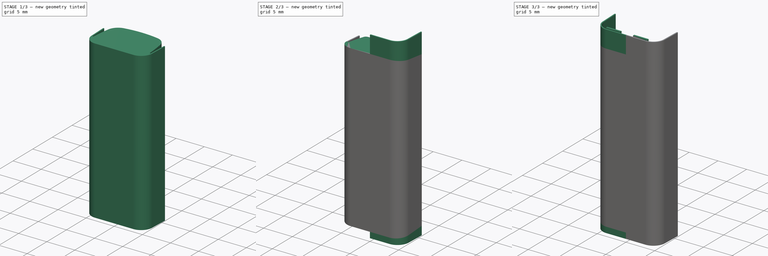
[diagram: build sequence overview — one tinted view per stage of 3, left to right]
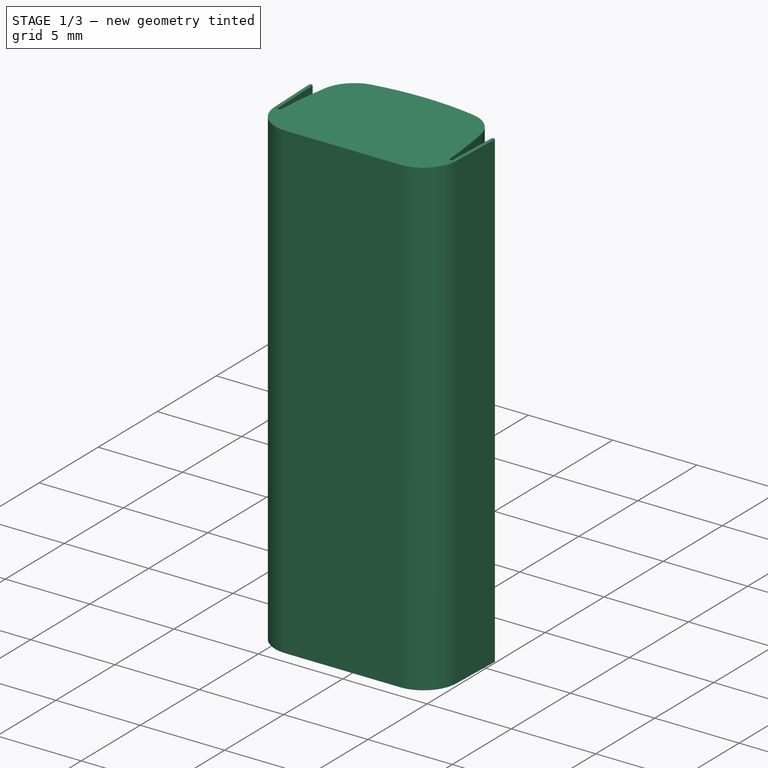
[diagram: stage 1 of 3 — iso view after this stage's code; geometry added in this stage tinted green]
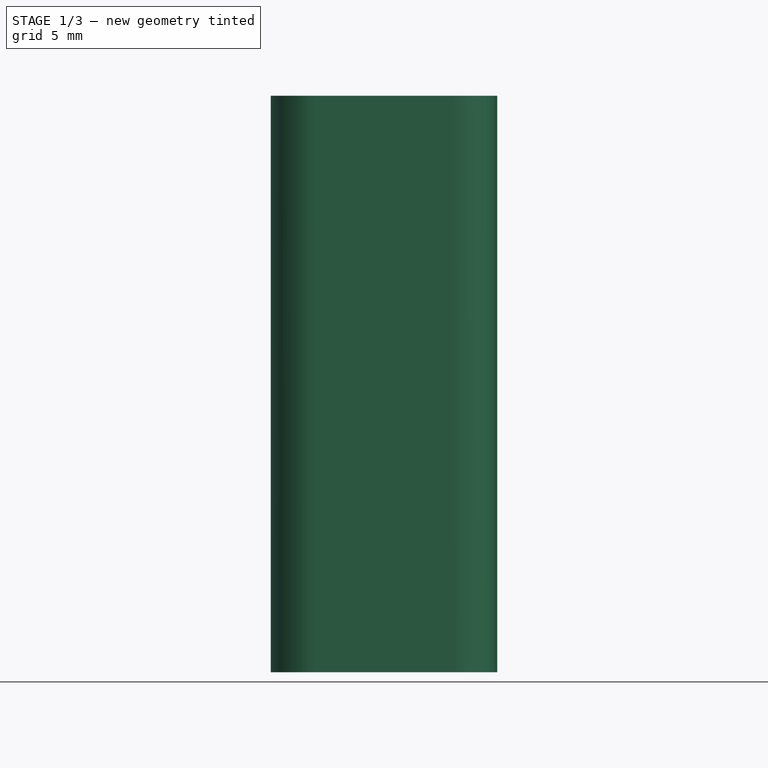
[diagram: stage 1 of 3 — front view after this stage's code; geometry added in this stage tinted green]
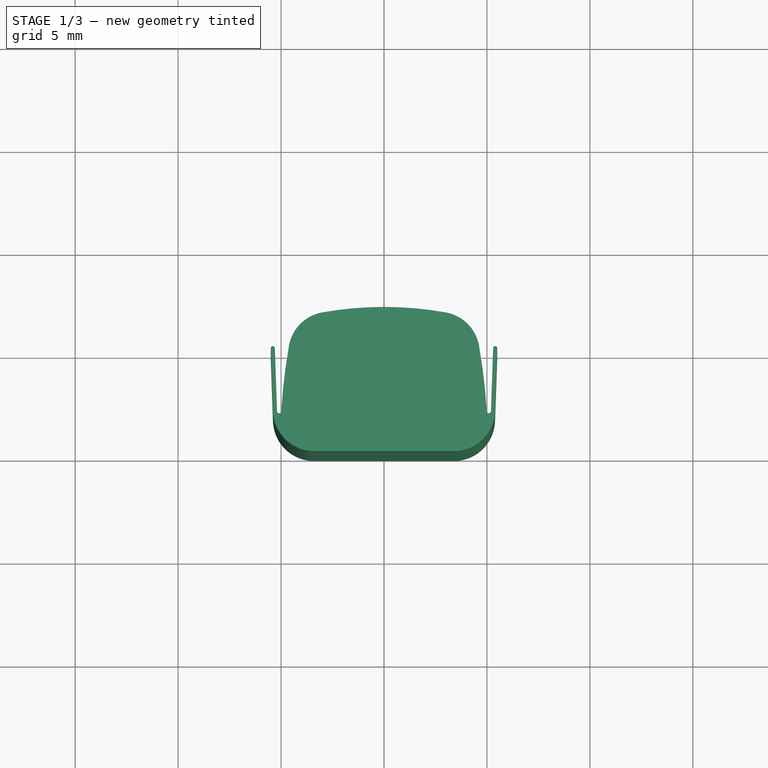
[diagram: stage 1 of 3 — top view after this stage's code; geometry added in this stage tinted green]
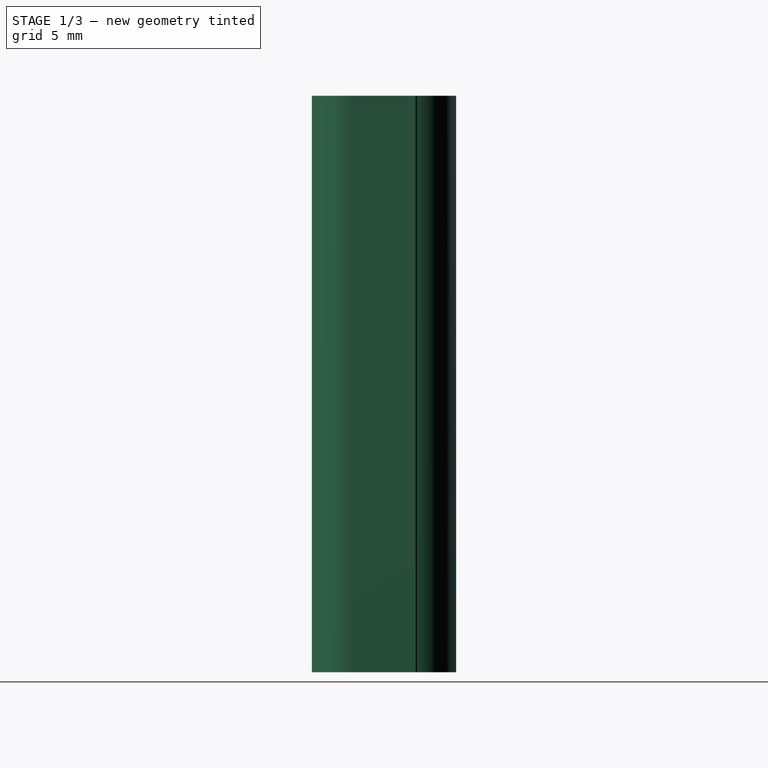
[diagram: stage 1 of 3 — right view after this stage's code; geometry added in this stage tinted green]
FCSTD DOCUMENT  (FreeCAD 0.18.1R)
Label: Batterie_1S_130mA
License: All rights reserved
LicenseURL: http://en.wikipedia.org/wiki/All_rights_reserved
objects: Sketcher::SketchObject×4, PartDesign::Pad×3, PartDesign::Mirrored×2, PartDesign::Pocket×1, PartDesign::Body×1
note: 15 computed .brp shape members not serialized (recipe doc carries the construction recipe); baked Part::Feature solids carry a one-line shape summary decoded from their .brp

FEATURE [Sketcher::SketchObject] Sketch
  MapMode = 5
  Support = -> [XY_Plane]
  sketch-geometry (11):
    g0: ArcOfCircle CenterX=-24.9453 CenterY=0.00406588 CenterZ=0 NormalX=0 NormalY=0 NormalZ=1 AngleXU=0 Radius=30 StartAngle=0.0641511 EndAngle=0.170849
    g1: LineSegment StartX=5.3928 StartY=1.9302 StartZ=0 EndX=5.5 EndY=5 EndZ=0
    g2: ArcOfCircle CenterX=2.64706 CenterY=4.76459 CenterZ=0 NormalX=0 NormalY=0 NormalZ=1 AngleXU=0 Radius=2 StartAngle=0.170849 EndAngle=1.3934
    g3: LineSegment [constr] StartX=3 StartY=7 StartZ=0 EndX=0 EndY=7 EndZ=0
    g4: ArcOfCircle CenterX=0 CenterY=-10 CenterZ=0 NormalX=0 NormalY=0 NormalZ=1 AngleXU=0 Radius=17 StartAngle=1.3934 EndAngle=1.5708
    g5: ArcOfCircle CenterX=3.39402 CenterY=2 CenterZ=0 NormalX=0 NormalY=0 NormalZ=1 AngleXU=0 Radius=2 StartAngle=4.71239 EndAngle=6.24828
    g6: ArcOfCircle CenterX=5.4 CenterY=5 CenterZ=0 NormalX=0 NormalY=0 NormalZ=1 AngleXU=0 Radius=0.1 StartAngle=0 EndAngle=3.10669
    g7: LineSegment StartX=5.30006 StartY=5.00349 StartZ=0 EndX=5.19274 EndY=1.9302 EndZ=0
    g8: ArcOfCircle CenterX=5.0928 CenterY=1.93369 CenterZ=0 NormalX=0 NormalY=0 NormalZ=1 AngleXU=0 Radius=0.1 StartAngle=3.20574 EndAngle=6.24828
    g9: LineSegment StartX=0 StartY=7 StartZ=0 EndX=0 EndY=0 EndZ=0
    g10: LineSegment StartX=3.39402 StartY=0 StartZ=0 EndX=0 EndY=0 EndZ=0
  constraints (30):
    c: Tangent(g0,g2) = -1.5708
    c: Horizontal(g3)
    c: Vertical(g2,g3)
    c: Tangent(g4,g2) = -1.5708
    c: Radius(g4) = 17
    c: Tangent(g1,g5) = -1.5708
    c: DistanceY(g-1,g3) = 7
    c: Horizontal(g1,g6)
    c: Coincident(g6,g1)
    c: Tangent(g7,g6) = -1.5708
    c: Tangent(g8,g7) = 1.5708
    c: Tangent(g8,g0) = 1.5708
    c: Radius(g8) = 0.1
    c: Parallel(g1,g7)
    c: Coincident(g9,g-1)
    c: Vertical(g9)
    c: Coincident(g4,g9)
    c: Coincident(g10,g9)
    c: Horizontal(g10)
    c: DistanceX(g9,g1) = 5.5
    c: DistanceY(g5,g1) = 5
    c: Angle(g1,g9) = 0.0349066
    c: Equal(g8,g6)
    c: Radius(g0) = 30
    c: Radius(g2) = 2
    c: Radius(g5) = 2
    c: Tangent(g10,g5) = 1.5708
    c: Horizontal(g7,g1)
    c: Tangent(g3,g4) = -1.5708
    c: DistanceX(g3,g3) = 3
FEATURE [PartDesign::Pad] Pad
  Length = 28
  Length2 = 100
  Midplane = true
  Profile = -> Sketch
  Type = 0
FEATURE [Sketcher::SketchObject] Sketch001
  MapMode = 5
  Placement = pos=(0,0,0) rot=(0.57735,0.57735,0.57735;2.0944rad)
  Support = -> [YZ_Plane]
  sketch-geometry (11):
    g0: LineSegment StartX=0 StartY=14 StartZ=0 EndX=5.06351 EndY=13.5 EndZ=0
    g1: LineSegment StartX=5.06352 StartY=-13.5 StartZ=0 EndX=0 EndY=-14 EndZ=0
    g2: LineSegment StartX=0 StartY=-14 StartZ=0 EndX=0 EndY=-19 EndZ=0
    g3: LineSegment StartX=0 StartY=-19 StartZ=0 EndX=10 EndY=-19 EndZ=0
    g4: LineSegment StartX=10 StartY=-19 StartZ=0 EndX=10 EndY=19 EndZ=0
    g5: LineSegment StartX=10 StartY=19 StartZ=0 EndX=0 EndY=19 EndZ=0
    g6: LineSegment StartX=0 StartY=19 StartZ=0 EndX=0 EndY=14 EndZ=0
    g7: ArcOfCircle CenterX=4.86698 CenterY=11.5097 CenterZ=0 NormalX=0 NormalY=0 NormalZ=1 AngleXU=0 Radius=2 StartAngle=0.0231086 EndAngle=1.47237
    g8: ArcOfCircle CenterX=4.86698 CenterY=-11.5097 CenterZ=0 NormalX=0 NormalY=0 NormalZ=1 AngleXU=0 Radius=2 StartAngle=4.81082 EndAngle=6.26007
    g9: ArcOfCircle CenterX=-493 CenterY=1.22e-13 CenterZ=0 NormalX=0 NormalY=0 NormalZ=1 AngleXU=0 Radius=500 StartAngle=6.26007 EndAngle=6.3063
    g10: LineSegment [constr] StartX=7 StartY=13.5 StartZ=0 EndX=7 EndY=-13.5 EndZ=0
  constraints (32):
    c: PointOnObject(g1,g-2)
    c: Coincident(g2,g1)
    c: PointOnObject(g2,g-2)
    c: Coincident(g3,g2)
    c: Horizontal(g3)
    c: Coincident(g4,g3)
    c: Vertical(g4)
    c: Coincident(g5,g4)
    c: Horizontal(g5)
    c: Coincident(g6,g5)
    c: Coincident(g6,g0)
    c: Vertical(g6)
    c: Tangent(g0,g7) = 1.5708
    c: Tangent(g1,g8) = 1.5708
    c: Coincident(g9,g7)
    c: Tangent(g9,g8) = -1.5708
    c: Tangent(g9,g7)
    c: Vertical(g10)
    c: Horizontal(g1,g10)
    c: Horizontal(g0,g10)
    c: DistanceX(g-1,g10) = 7
    c: DistanceY(g1,g0) = 28
    c: Tangent(g10,g9)
    c: Symmetric(g7,g8,g-1)
    c: Equal(g2,g6)
    c: DistanceY(g2,g2) = 5
    c: DistanceX(g5,g5) = 10
    c: Symmetric(g1,g0,g-1)
    c: Radius(g9) = 500
    c: Equal(g8,g7)
    c: Radius(g7) = 2
    c: DistanceY(g1,g0) = 27
FEATURE [PartDesign::Mirrored] Mirrored
  BaseFeature = -> Pad
  MirrorPlane = -> Sketch [V_Axis]
  Originals = -> [Pad]
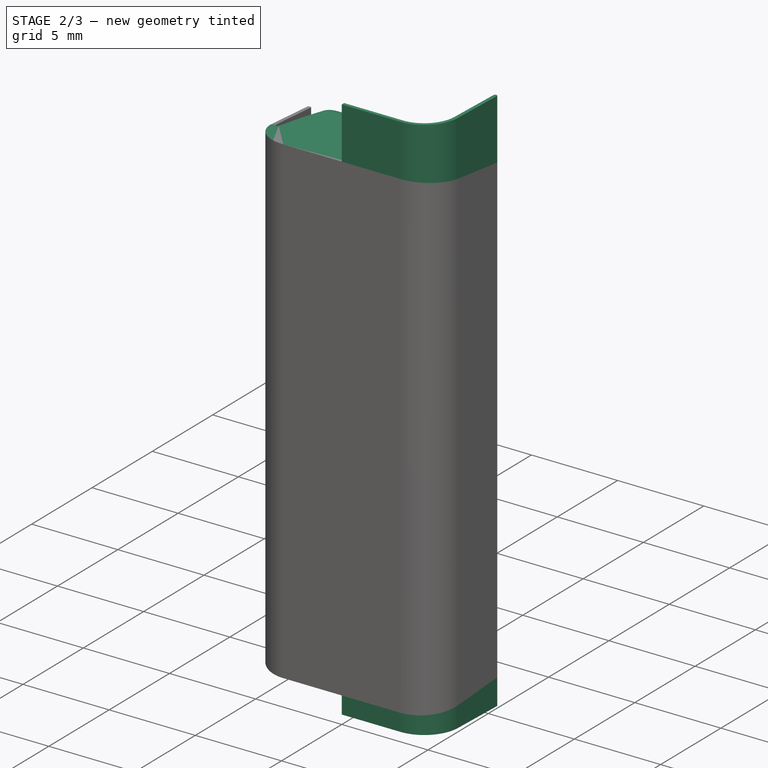
[diagram: stage 2 of 3 — iso view after this stage's code; geometry added in this stage tinted green]
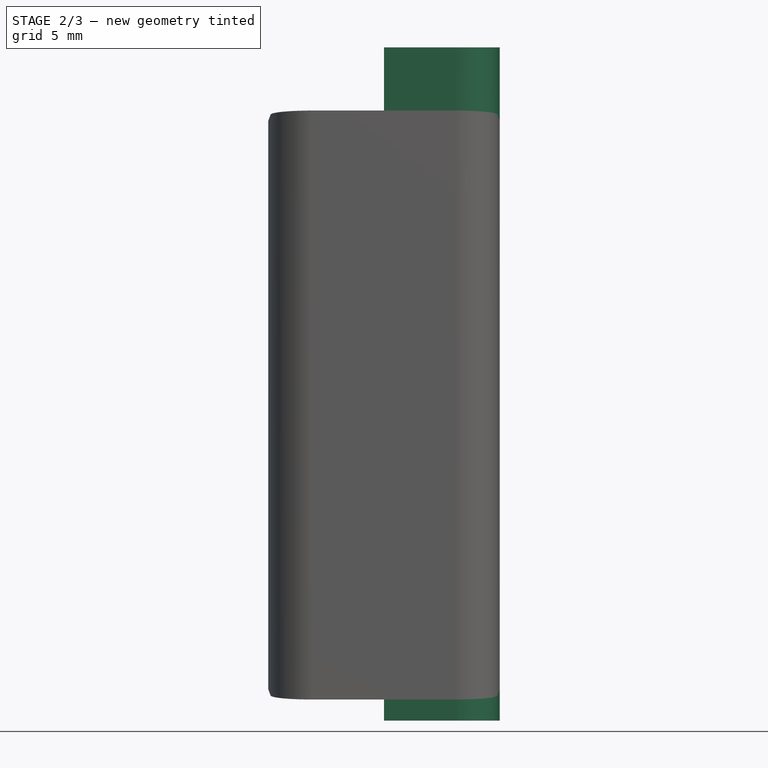
[diagram: stage 2 of 3 — front view after this stage's code; geometry added in this stage tinted green]
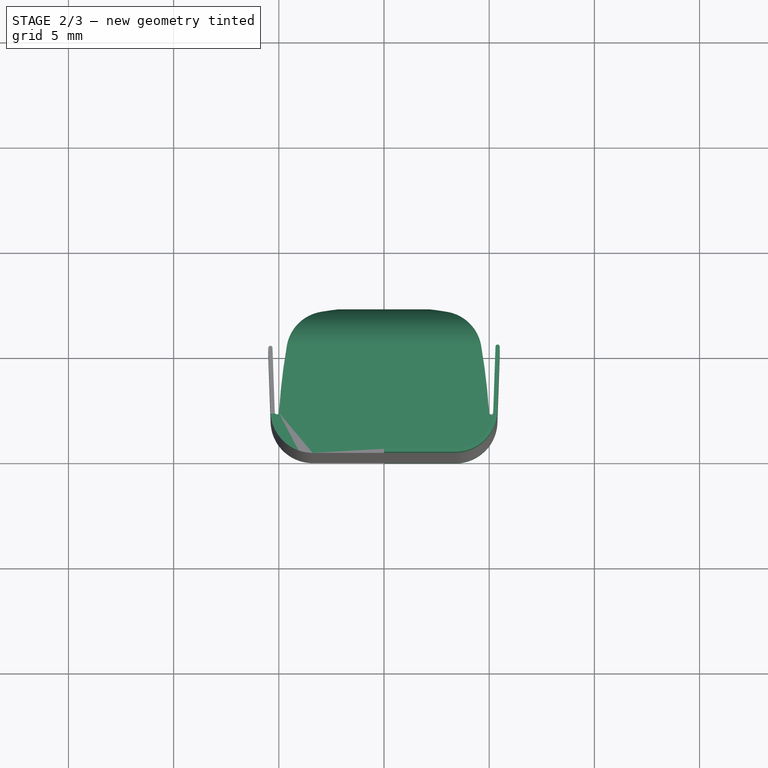
[diagram: stage 2 of 3 — top view after this stage's code; geometry added in this stage tinted green]
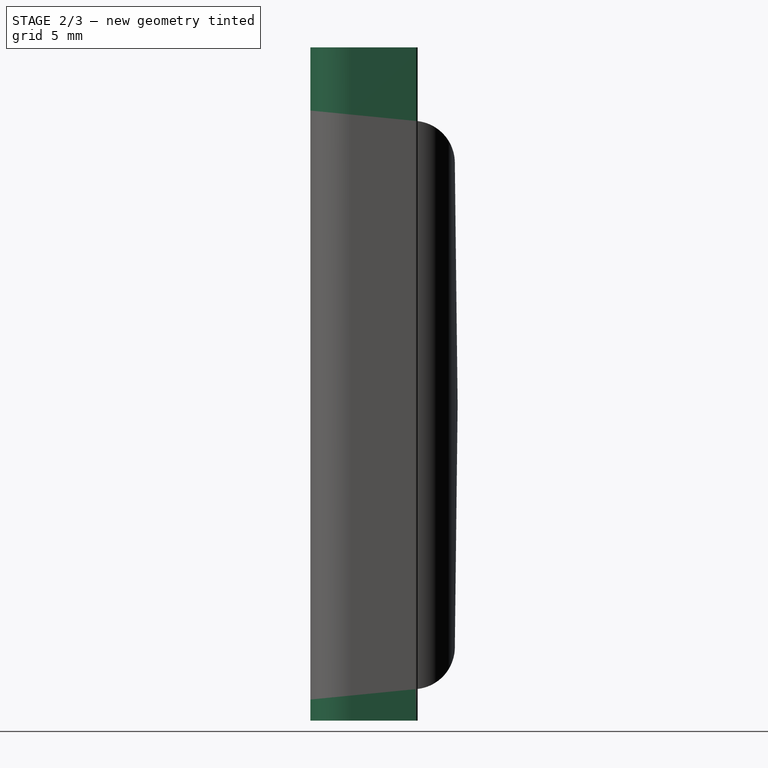
[diagram: stage 2 of 3 — right view after this stage's code; geometry added in this stage tinted green]
FEATURE [PartDesign::Pocket] Pocket
  BaseFeature = -> Mirrored
  Length = 5
  Length2 = 100
  Midplane = true
  Profile = -> Sketch001
  Type = 1
FEATURE [Sketcher::SketchObject] Sketch002
  MapMode = 5
  Support = -> [XY_Plane]
  sketch-geometry (8):
    g0: LineSegment StartX=5.3928 StartY=1.9302 StartZ=0 EndX=5.5 EndY=5 EndZ=0
    g1: ArcOfCircle CenterX=3.39402 CenterY=2 CenterZ=0 NormalX=0 NormalY=0 NormalZ=1 AngleXU=0 Radius=2 StartAngle=4.71239 EndAngle=6.24828
    g2: ArcOfCircle CenterX=5.4 CenterY=5 CenterZ=0 NormalX=0 NormalY=0 NormalZ=1 AngleXU=0 Radius=0.1 StartAngle=0 EndAngle=3.10669
    g3: LineSegment StartX=5.30006 StartY=5.00349 StartZ=0 EndX=5.19274 EndY=1.9302 EndZ=0
    g4: LineSegment StartX=3.39402 StartY=0 StartZ=0 EndX=0 EndY=0 EndZ=0
    g5: ArcOfCircle CenterX=3.39402 CenterY=1.99301 CenterZ=0 NormalX=0 NormalY=0 NormalZ=1 AngleXU=0 Radius=1.79982 StartAngle=4.71239 EndAngle=6.24828
    g6: LineSegment StartX=0 StartY=0.193197 StartZ=0 EndX=3.39402 EndY=0.193197 EndZ=0
    g7: LineSegment StartX=0 StartY=0.193197 StartZ=0 EndX=0 EndY=0 EndZ=0
  constraints (21):
    c: Tangent(g0,g1) = -1.5708
    c: Horizontal(g0,g2)
    c: Coincident(g2,g0)
    c: Tangent(g3,g2) = -1.5708
    c: Parallel(g0,g3)
    c: Horizontal(g4)
    c: DistanceX(g-1,g0) = 5.5
    c: DistanceY(g1,g0) = 5
    c: Radius(g1) = 2
    c: Tangent(g4,g1) = 1.5708
    c: Horizontal(g3,g0)
    c: Horizontal(g6)
    c: Vertical(g5,g1)
    c: Tangent(g5,g3) = 1.5708
    c: Tangent(g6,g5) = -1.5708
    c: Angle(g3,g-2) = 0.0349066
    c: Radius(g2) = 0.1
    c: Coincident(g7,g6)
    c: Vertical(g7)
    c: Coincident(g4,g7)
    c: Coincident(g4,g-1)
FEATURE [PartDesign::Pad] Pad001
  BaseFeature = -> Pocket
  Length = 17
  Length2 = 15
  Profile = -> Sketch002
  Type = 4
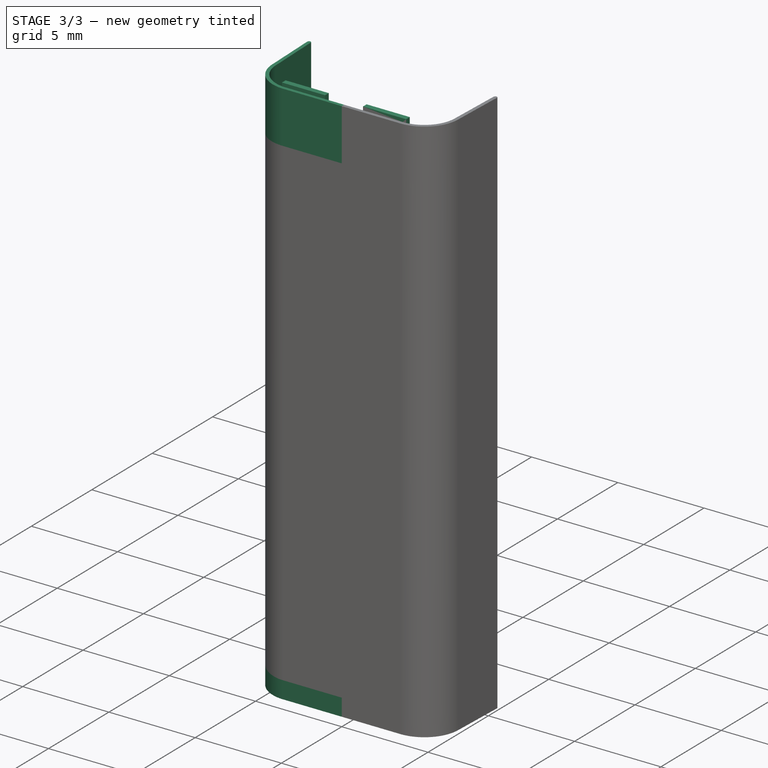
[diagram: stage 3 of 3 — iso view after this stage's code; geometry added in this stage tinted green]
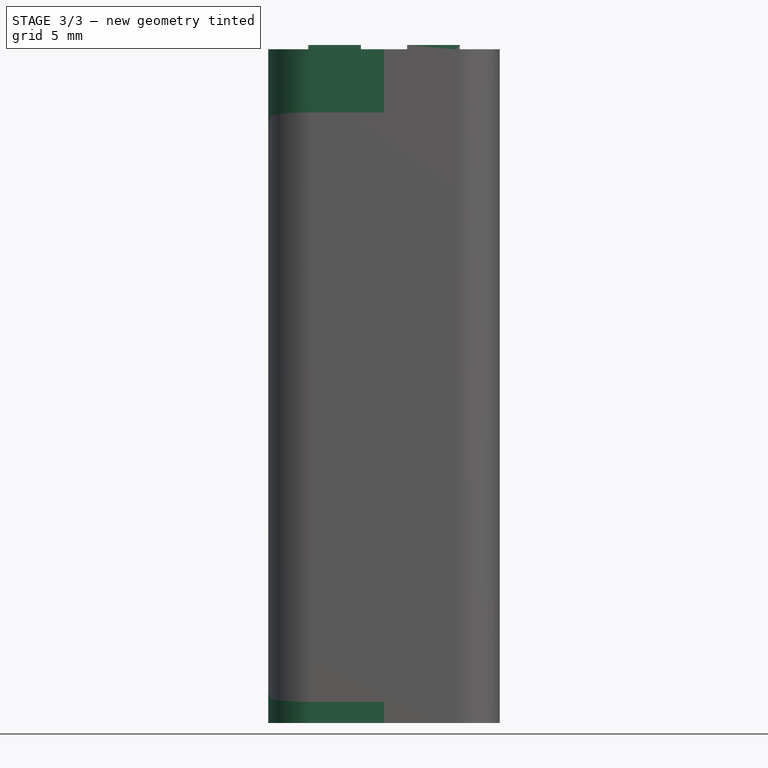
[diagram: stage 3 of 3 — front view after this stage's code; geometry added in this stage tinted green]
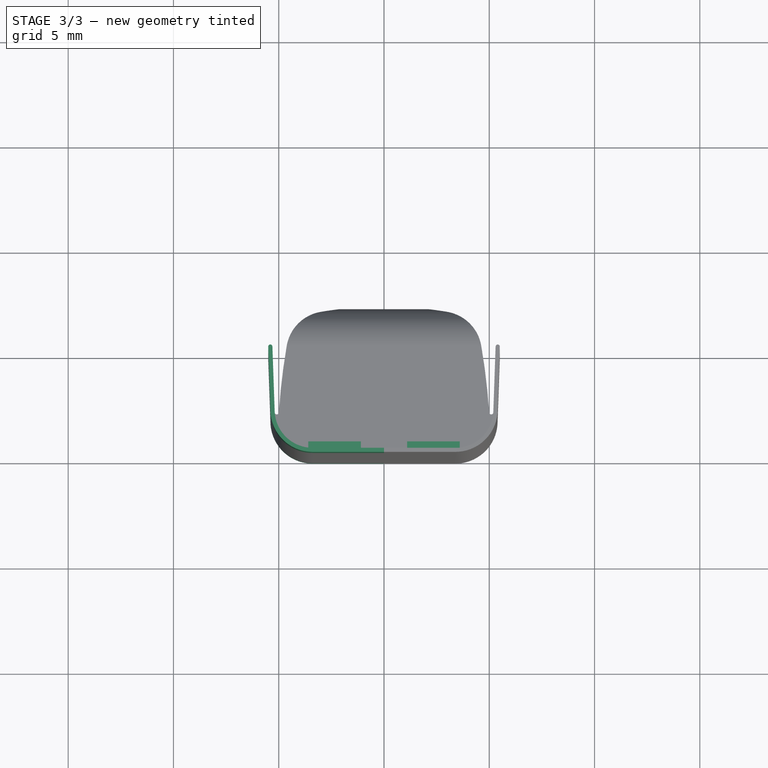
[diagram: stage 3 of 3 — top view after this stage's code; geometry added in this stage tinted green]
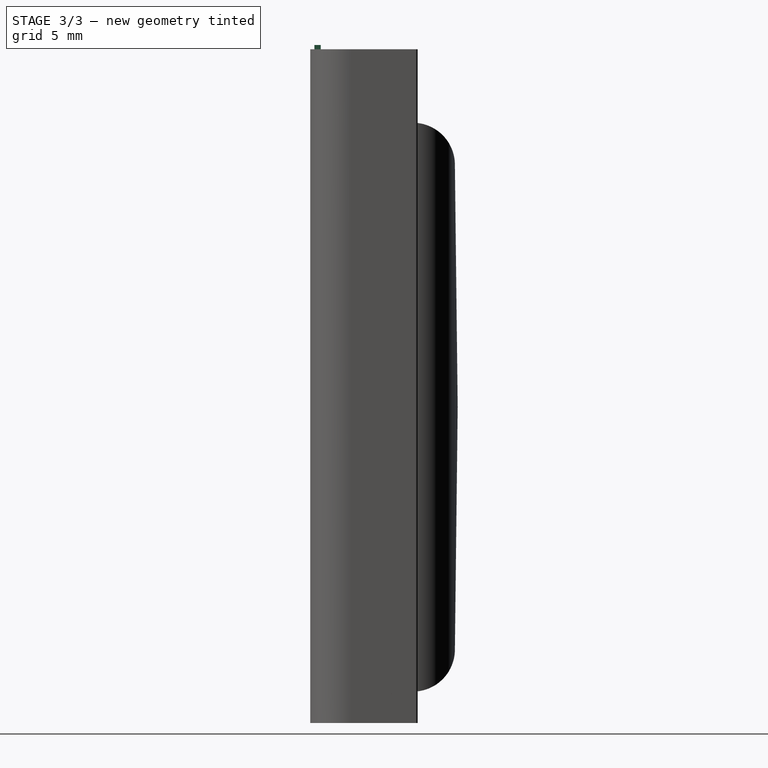
[diagram: stage 3 of 3 — right view after this stage's code; geometry added in this stage tinted green]
FEATURE [PartDesign::Mirrored] Mirrored001
  BaseFeature = -> Pad001
  MirrorPlane = -> Sketch002 [V_Axis]
  Originals = -> [Pad001]
FEATURE [Sketcher::SketchObject] Sketch003
  MapMode = 5
  Placement = pos=(0,0.193197,0) rot=(0,0.707107,0.707107;3.14159rad)
  Support = -> [Mirrored001]
  sketch-geometry (8):
    g0: LineSegment StartX=-3.6 StartY=17.2 StartZ=0 EndX=-1.1 EndY=17.2 EndZ=0
    g1: LineSegment StartX=-1.1 StartY=17.2 StartZ=0 EndX=-1.1 EndY=13.2 EndZ=0
    g2: LineSegment StartX=-1.1 StartY=13.2 StartZ=0 EndX=-3.6 EndY=13.2 EndZ=0
    g3: LineSegment StartX=-3.6 StartY=13.2 StartZ=0 EndX=-3.6 EndY=17.2 EndZ=0
    g4: LineSegment StartX=1.1 StartY=17.2 StartZ=0 EndX=3.6 EndY=17.2 EndZ=0
    g5: LineSegment StartX=3.6 StartY=17.2 StartZ=0 EndX=3.6 EndY=13.2 EndZ=0
    g6: LineSegment StartX=3.6 StartY=13.2 StartZ=0 EndX=1.1 EndY=13.2 EndZ=0
    g7: LineSegment StartX=1.1 StartY=13.2 StartZ=0 EndX=1.1 EndY=17.2 EndZ=0
  constraints (23):
    c: Coincident(g0,g1)
    c: Coincident(g1,g2)
    c: Coincident(g2,g3)
    c: Coincident(g3,g0)
    c: Horizontal(g0)
    c: Horizontal(g2)
    c: Vertical(g1)
    c: Vertical(g3)
    c: Coincident(g4,g5)
    c: Coincident(g5,g6)
    c: Coincident(g6,g7)
    c: Coincident(g7,g4)
    c: Horizontal(g4)
    c: Horizontal(g6)
    c: Vertical(g5)
    c: Vertical(g7)
    c: Symmetric(g4,g0,g-2)
    c: DistanceY(g-1,g0) = 17.2
    c: Equal(g4,g0)
    c: DistanceX(g0,g0) = 2.5
    c: DistanceY(g5,g5) = 4
    c: Equal(g7,g1)
    c: DistanceX(g0,g4) = 2.2
FEATURE [PartDesign::Pad] Pad002
  BaseFeature = -> Mirrored001
  Length = 0.3
  Length2 = 100
  Profile = -> Sketch003
  Type = 0
FEATURE [PartDesign::Body] Body
  Group = -> [Sketch,Pad,Sketch001,Mirrored,Pocket,Sketch002,Pad001,Mirrored001,Sketch003,Pad002]
  Origin = -> Origin
  Tip = -> Pad002
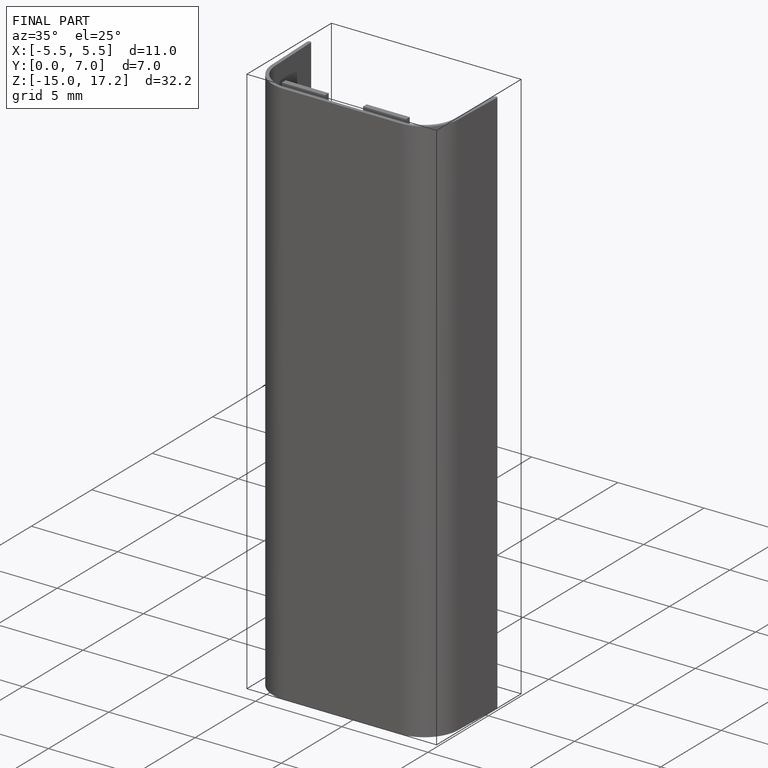
[diagram: finished part — iso view with bounding-box wireframe]
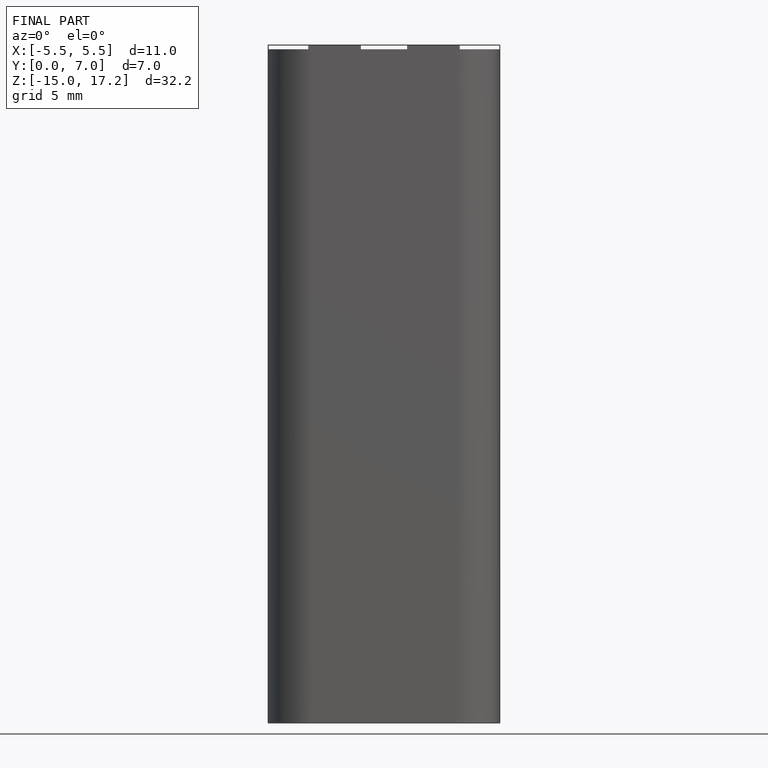
[diagram: finished part — front view with bounding-box wireframe]
